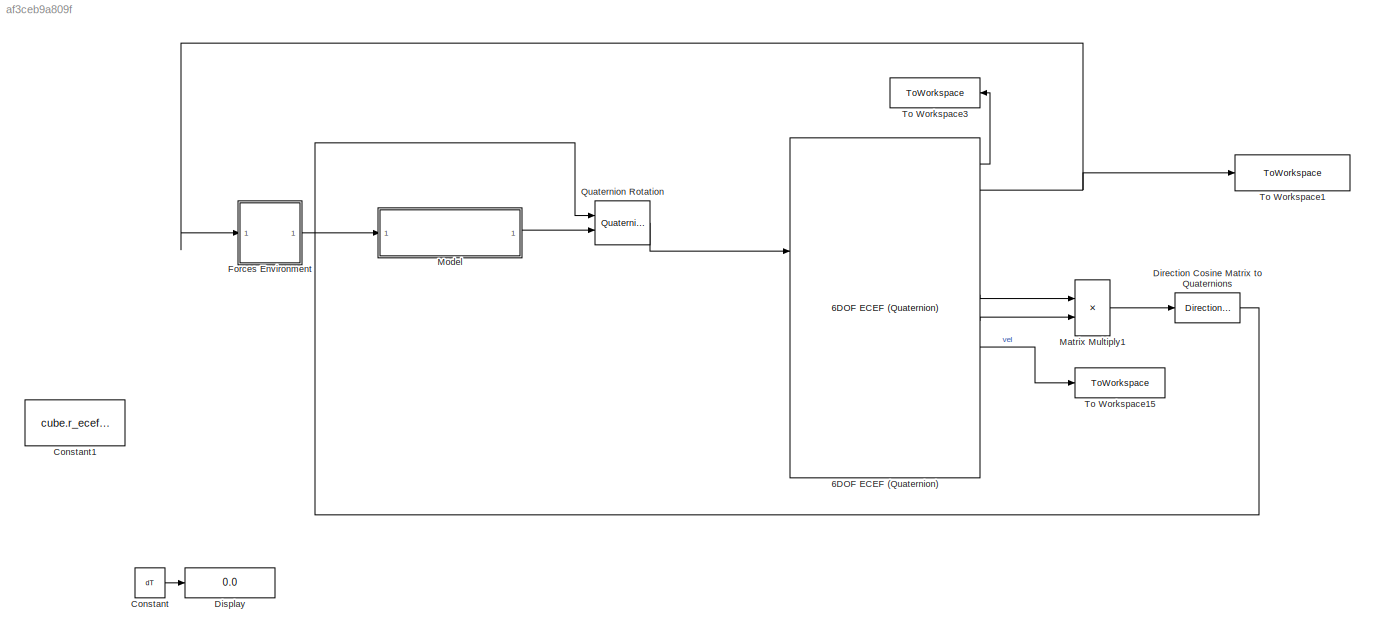
MODEL slx_af3ceb9a809f
KIND model
CONFIG AbsTol = auto
CONFIG EnableMultiTasking = off
CONFIG FixedStep = auto
CONFIG MaxStep = 0.5
CONFIG MinStep = 0.1
CONFIG RelTol = 1e-3
CONFIG SampleTimeConstraint = Unconstrained
CONFIG Solver = ode3
CONFIG SolverName = ode3
CONFIG StartTime = 0.0
CONFIG StopTime = 30
BLOCK [Reference] 6DOF ECEF (Quaternion)  REF=aerolib6dof2/6DOF ECEF (Quaternion)
  Ports = [2, 12]
  SourceBlock = aerolib6dof2/6DOF ECEF (Quaternion)
  SourceProductBaseCode = AE
  SourceProductName = Aerospace Blockset
  SourceType = 6DOF EoM (ECEF)
BLOCK [Constant] Constant
  Value = dT
BLOCK [Constant] Constant1
  Value = cube.r_ecef(1,:)
BLOCK [Reference] Direction Cosine Matrix to Quaternions  REF=sharedtransform/Direction Cosine Matrix 
to Quaternions
  Ports = [1, 1]
  SourceBlock = sharedtransform/Direction Cosine Matrix \nto Quaternions
  SourceProductBaseCode = AE
  SourceProductName = Aerospace Blockset
  SourceType = DCM2Quaternion
BLOCK [Display] Display
  Decimation = 1
  Ports = [1]
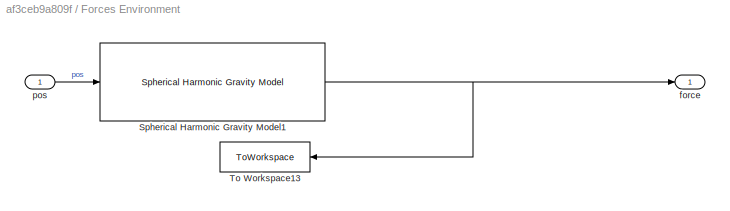
BLOCK [SubSystem] Forces Environment
  Ports = [1, 1]
  RequestExecContextInheritance = off
BLOCK [Reference] Forces Environment/Spherical Harmonic Gravity Model1  REF=aerolibgravity2/Spherical Harmonic Gravity Model
  Ports = [1, 1]
  SourceBlock = aerolibgravity2/Spherical Harmonic Gravity Model
  SourceProductBaseCode = AE
  SourceProductName = Aerospace Blockset
  SourceType = Spherical Harmonic Gravity Model
BLOCK [ToWorkspace] Forces Environment/To Workspace13
  FixptAsFi = on
  MaxDataPoints = inf
  Ports = [1]
  SampleTime = -1
  VariableName = g
BLOCK [Outport] Forces Environment/force
  IconDisplay = Port number
BLOCK [Inport] Forces Environment/pos
  IconDisplay = Port number
BLOCK [Product] Matrix Multiply1
  InputSameDT = off
  Multiplication = Matrix(*)
  OutDataTypeStr = Inherit: Inherit via internal rule
  Ports = [2, 1]
  RndMeth = Floor
  SaturateOnIntegerOverflow = off
BLOCK [ModelReference] Model
  ModelNameDialog = PerfectActuators.slx
  ModelReferenceVersion = 1.7
  Ports = [1, 1]
BLOCK [Reference] Quaternion Rotation  REF=aerolibutil/Quaternion
Rotation
  Ports = [2, 1]
  SourceBlock = aerolibutil/Quaternion\nRotation
  SourceProductBaseCode = AE
  SourceProductName = Aerospace Blockset
  SourceType = Quaternion Rotation
BLOCK [ToWorkspace] To Workspace1
  FixptAsFi = on
  MaxDataPoints = inf
  Ports = [1]
  SampleTime = -1
  VariableName = r_ecef
BLOCK [ToWorkspace] To Workspace15
  FixptAsFi = on
  MaxDataPoints = inf
  Ports = [1]
  SampleTime = -1
  Save2DSignal = 2-D array (concatenate along first dimension)
  VariableName = v_b
BLOCK [ToWorkspace] To Workspace3
  FixptAsFi = on
  MaxDataPoints = inf
  Ports = [1]
  SampleTime = -1
  Save2DSignal = 2-D array (concatenate along first dimension)
  VariableName = v_ecef
LINE 6DOF ECEF (Quaternion):1 -> To Workspace3:1
NET 6DOF ECEF (Quaternion):2 -> Forces Environment:1, To Workspace1:1
LINE 6DOF ECEF (Quaternion):6 -> Matrix Multiply1:1
LINE 6DOF ECEF (Quaternion):7 -> Matrix Multiply1:2
LINE 6DOF ECEF (Quaternion):8 -> To Workspace15:1
LINE Constant:1 -> Display:1
LINE Direction Cosine Matrix to Quaternions:1 -> Quaternion Rotation:1
NET Forces Environment/Spherical Harmonic Gravity Model1:1 -> Forces Environment/To Workspace13:1, Forces Environment/force:1
LINE Forces Environment/pos:1 -> Forces Environment/Spherical Harmonic Gravity Model1:1
LINE Forces Environment:1 -> Model:1
LINE Matrix Multiply1:1 -> Direction Cosine Matrix to Quaternions:1
LINE Model:1 -> Quaternion Rotation:2
LINE Quaternion Rotation:1 -> 6DOF ECEF (Quaternion):1
note: NET lines group one-source signal fan-out (src -> all destinations, sorted); 1:1 wires keep LINE
